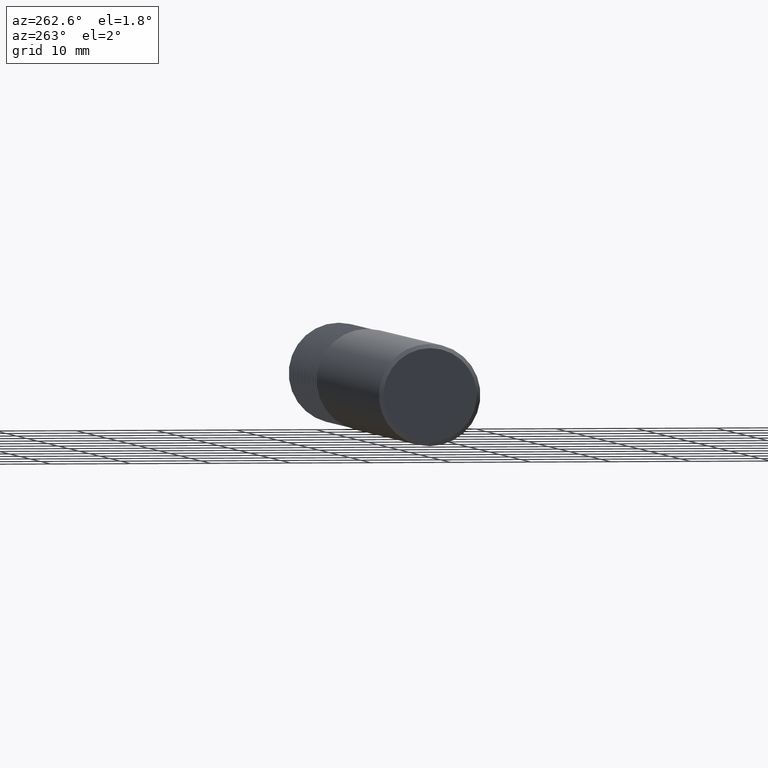
[diagram: clean part render]
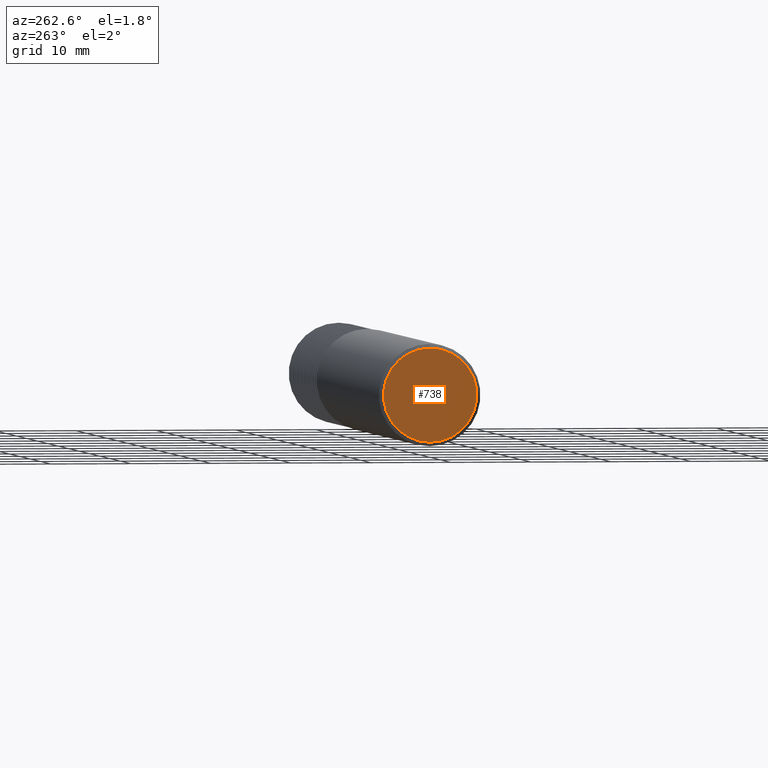
[diagram: same view with one face highlighted and labeled with its STEP entity id]
A machine part, auxiliary view. The second image highlights one B-rep face of the part: STEP entity #738.
In plain terms, the highlighted planar face has unit normal (1, 0, 0).
Its self-contained STEP definition (entity closure, byte-faithful):
#142 = EDGE_CURVE ( 'NONE', #1536, #275, #1991, .T. ) ;
#275 = VERTEX_POINT ( 'NONE', #452 ) ;
#452 = CARTESIAN_POINT ( 'NONE',  ( 0.000000000000000000, 2.937315347754928730E-17, 0.2298500000000002763 ) ) ;
#457 = DIRECTION ( 'NONE',  ( 0.000000000000000000, 0.000000000000000000, -1.000000000000000000 ) ) ;
#679 = CARTESIAN_POINT ( 'NONE',  ( 0.000000000000000000, 0.000000000000000000, -0.2298500000000002763 ) ) ;
#738 = ADVANCED_FACE ( 'NONE', ( #1348 ), #2241, .F. ) ;
#809 = DIRECTION ( 'NONE',  ( 0.000000000000000000, 0.000000000000000000, -1.000000000000000000 ) ) ;
#1082 = EDGE_CURVE ( 'NONE', #275, #1536, #1218, .T. ) ;
#1218 = CIRCLE ( 'NONE', #2262, 0.2298500000000002763 ) ;
#1270 = AXIS2_PLACEMENT_3D ( 'NONE', #1841, #1588, #457 ) ;
#1348 = FACE_OUTER_BOUND ( 'NONE', #2756, .T. ) ;
#1536 = VERTEX_POINT ( 'NONE', #679 ) ;
#1588 = DIRECTION ( 'NONE',  ( 1.000000000000000000, 0.000000000000000000, 0.000000000000000000 ) ) ;
#1776 = ORIENTED_EDGE ( 'NONE', *, *, #1082, .T. ) ;
#1841 = CARTESIAN_POINT ( 'NONE',  ( 0.000000000000000000, 0.000000000000000000, 0.000000000000000000 ) ) ;
#1853 = AXIS2_PLACEMENT_3D ( 'NONE', #2411, #2360, #809 ) ;
#1991 = CIRCLE ( 'NONE', #1853, 0.2298500000000002763 ) ;
#2103 = ORIENTED_EDGE ( 'NONE', *, *, #142, .T. ) ;
#2241 = PLANE ( 'NONE',  #1270 ) ;
#2262 = AXIS2_PLACEMENT_3D ( 'NONE', #2865, #2440, #2453 ) ;
#2360 = DIRECTION ( 'NONE',  ( -1.000000000000000000, -0.000000000000000000, -0.000000000000000000 ) ) ;
#2411 = CARTESIAN_POINT ( 'NONE',  ( 0.000000000000000000, 0.000000000000000000, 0.000000000000000000 ) ) ;
#2440 = DIRECTION ( 'NONE',  ( -1.000000000000000000, -0.000000000000000000, -0.000000000000000000 ) ) ;
#2453 = DIRECTION ( 'NONE',  ( 0.000000000000000000, 0.000000000000000000, -1.000000000000000000 ) ) ;
#2756 = EDGE_LOOP ( 'NONE', ( #2103, #1776 ) ) ;
#2865 = CARTESIAN_POINT ( 'NONE',  ( 0.000000000000000000, 0.000000000000000000, 0.000000000000000000 ) ) ;